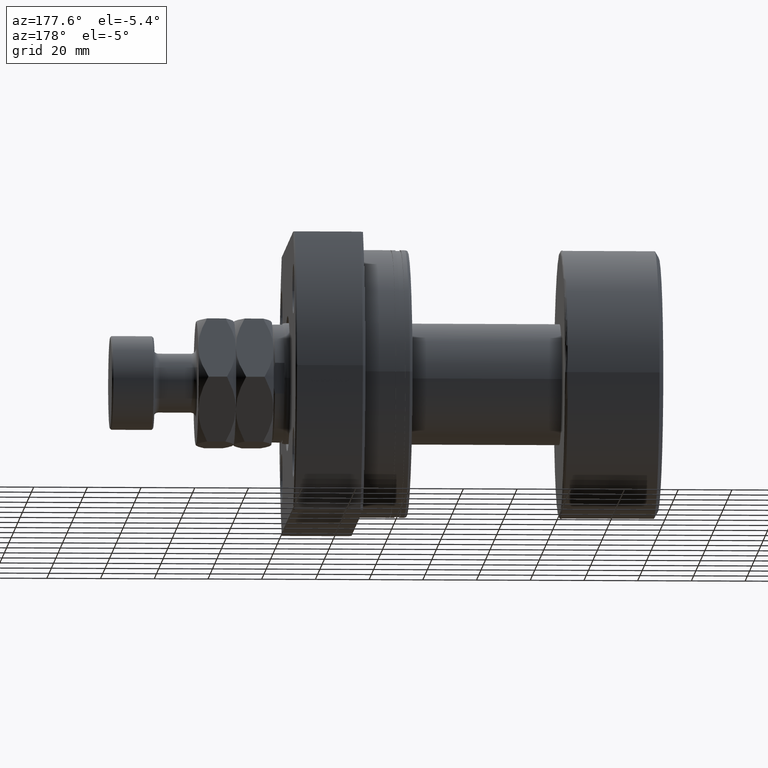
[diagram: clean part render]
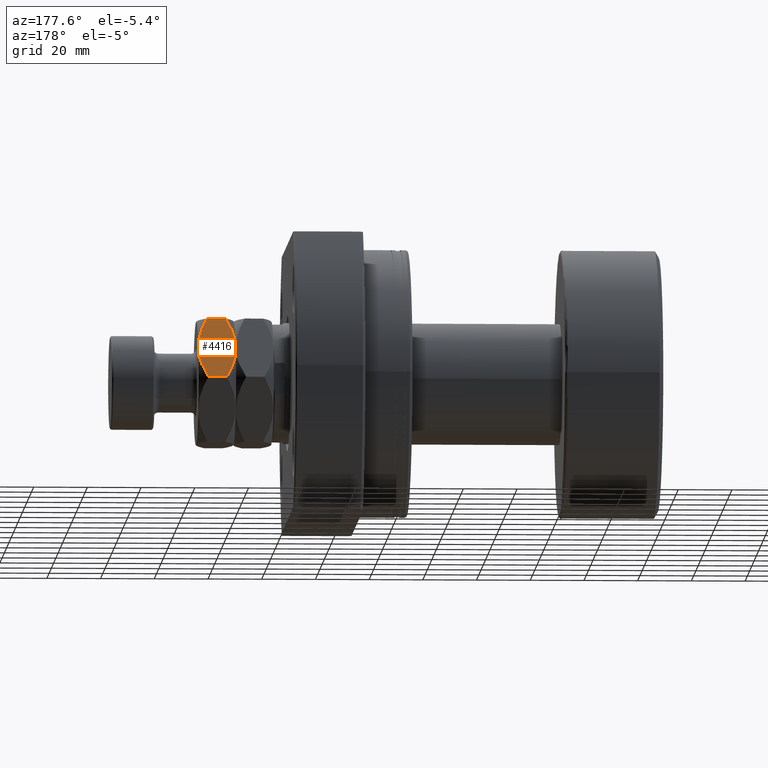
[diagram: same view with one face highlighted and labeled with its STEP entity id]
A machine part, auxiliary view. The second image highlights one B-rep face of the part: STEP entity #4416.
In plain terms, the highlighted planar face has unit normal (0, -0.866, -0.5).
Its self-contained STEP definition (entity closure, byte-faithful):
#64 = CARTESIAN_POINT ( 'NONE',  ( 1.454313212164363718E-16, 26.55811238272278274, 17.55811238272277564 ) ) ;
#91 = DIRECTION ( 'NONE',  ( 0.5000000000000000000, -0.8660254037844387076, 0.000000000000000000 ) ) ;
#113 = CARTESIAN_POINT ( 'NONE',  ( -13.50031108690881254, 18.76370414255228880, 27.99999999999999645 ) ) ;
#121 = CARTESIAN_POINT ( 'NONE',  ( -23.00000000000000000, 13.27905619136138959, 24.44188761727722792 ) ) ;
#206 = CARTESIAN_POINT ( 'NONE',  ( -19.32386580747566285, 15.40147325699250835, 26.30893151126141305 ) ) ;
#349 = B_SPLINE_CURVE_WITH_KNOTS ( 'NONE', 3,
 ( #4652, #2738, #432, #1983, #2816, #2455, #4427, #3933, #4354, #2891 ),
 .UNSPECIFIED., .F., .F.,
 ( 4, 2, 2, 2, 4 ),
 ( 2.544306848965901738E-07, 0.006882727124393998516, 0.01032396347124855430, 0.01204458164467582700, 0.01376519981810310142 ),
 .UNSPECIFIED. ) ;
#364 = FACE_OUTER_BOUND ( 'NONE', #2243, .T. ) ;
#411 = CARTESIAN_POINT ( 'NONE',  ( -23.00000000000000000, 13.27905619136138959, 17.55811238272277564 ) ) ;
#432 = CARTESIAN_POINT ( 'NONE',  ( -3.647547518302291181, 24.45219984114900669, 26.36778857186889979 ) ) ;
#438 = B_SPLINE_CURVE_WITH_KNOTS ( 'NONE', 3,
 ( #3937, #113, #3555, #1210, #206, #1659, #3171, #4696 ),
 .UNSPECIFIED., .F., .F.,
 ( 4, 2, 2, 4 ),
 ( 0.01376519981810310142, 0.02059946815584627611, 0.02401660232471787212, 0.02743373649358946814 ),
 .UNSPECIFIED. ) ;
#702 = CARTESIAN_POINT ( 'NONE',  ( -15.51476468404854536, 17.60065881597367010, 14.43516383610315934 ) ) ;
#830 = CARTESIAN_POINT ( 'NONE',  ( -23.00000000000000000, 13.27905619136138959, 17.55811238272277564 ) ) ;
#976 = ORIENTED_EDGE ( 'NONE', *, *, #1151, .F. ) ;
#1055 = VERTEX_POINT ( 'NONE', #64 ) ;
#1061 = EDGE_CURVE ( 'NONE', #2192, #1055, #3815, .T. ) ;
#1064 = ORIENTED_EDGE ( 'NONE', *, *, #4360, .F. ) ;
#1099 = CARTESIAN_POINT ( 'NONE',  ( -5.585970924421222377E-16, 26.55811238272278274, 24.44188761727722792 ) ) ;
#1123 = EDGE_CURVE ( 'NONE', #3393, #2839, #438, .T. ) ;
#1151 = EDGE_CURVE ( 'NONE', #3497, #2192, #2671, .T. ) ;
#1194 = VECTOR ( 'NONE', #3063, 1000.000000000000000 ) ;
#1210 = CARTESIAN_POINT ( 'NONE',  ( -18.37513248879267280, 15.94922469392330200, 26.69215624893396566 ) ) ;
#1458 = CARTESIAN_POINT ( 'NONE',  ( -11.49999999999999822, 19.91858428704208706, 28.00000000000000000 ) ) ;
#1478 = CARTESIAN_POINT ( 'NONE',  ( -14.02580821503727293, 18.46030823416894862, 14.17725660431697143 ) ) ;
#1612 = CARTESIAN_POINT ( 'NONE',  ( -16.48674779066320539, 17.03948410772191835, 14.68627580135475519 ) ) ;
#1633 = CARTESIAN_POINT ( 'NONE',  ( -4.624867511207327198, 23.88794388016087211, 15.30784375106604323 ) ) ;
#1659 = CARTESIAN_POINT ( 'NONE',  ( -21.18561130058603581, 14.32659399538266065, 25.44392212070776083 ) ) ;
#1690 = CARTESIAN_POINT ( 'NONE',  ( -11.49999999999998757, 19.91858428704209416, 14.00000000000000000 ) ) ;
#1917 = DIRECTION ( 'NONE',  ( 0.8660254037844385966, 0.4999999999999999445, 0.000000000000000000 ) ) ;
#1983 = CARTESIAN_POINT ( 'NONE',  ( -6.513252209336787502, 22.79768446636224866, 27.31372419864523948 ) ) ;
#1987 = CARTESIAN_POINT ( 'NONE',  ( -21.19663298550256414, 14.32023062262916824, 16.51693795145500232 ) ) ;
#2032 = CARTESIAN_POINT ( 'NONE',  ( -3.676134192524332711, 24.43569531709167464, 15.69106848873859761 ) ) ;
#2059 = CARTESIAN_POINT ( 'NONE',  ( -0.9006392137919303487, 26.03812809019727226, 17.03812809019724028 ) ) ;
#2073 = VECTOR ( 'NONE', #3914, 1000.000000000000000 ) ;
#2192 = VERTEX_POINT ( 'NONE', #1690 ) ;
#2215 = CARTESIAN_POINT ( 'NONE',  ( -12.00360498572109869, 19.62782781297077861, 14.00000000000000355 ) ) ;
#2243 = EDGE_LOOP ( 'NONE', ( #976, #1064, #2437, #2570, #2783, #2685 ) ) ;
#2362 = CARTESIAN_POINT ( 'NONE',  ( -23.00000000000000000, 13.27905619136138959, 28.00000000000000000 ) ) ;
#2386 = CARTESIAN_POINT ( 'NONE',  ( 1.454313212164363718E-16, 26.55811238272278274, 17.55811238272277564 ) ) ;
#2412 = CARTESIAN_POINT ( 'NONE',  ( -11.49999999999998757, 19.91858428704209416, 14.00000000000000000 ) ) ;
#2437 = ORIENTED_EDGE ( 'NONE', *, *, #1123, .F. ) ;
#2455 = CARTESIAN_POINT ( 'NONE',  ( -8.974191784962719964, 21.37686033991523971, 27.82274339568303034 ) ) ;
#2488 = VERTEX_POINT ( 'NONE', #1099 ) ;
#2553 = AXIS2_PLACEMENT_3D ( 'NONE', #3559, #91, #1917 ) ;
#2570 = ORIENTED_EDGE ( 'NONE', *, *, #4858, .F. ) ;
#2671 = B_SPLINE_CURVE_WITH_KNOTS ( 'NONE', 3,
 ( #411, #1987, #3533, #1612, #702, #1478, #4537, #3009, #2215, #3792 ),
 .UNSPECIFIED., .F., .F.,
 ( 4, 2, 2, 2, 4 ),
 ( 2.544306848942777738E-07, 0.006882727124394009792, 0.01032396347124856298, 0.01204458164467584087, 0.01376519981810311703 ),
 .UNSPECIFIED. ) ;
#2685 = ORIENTED_EDGE ( 'NONE', *, *, #1061, .F. ) ;
#2738 = CARTESIAN_POINT ( 'NONE',  ( -1.803367014497426535, 25.51693795145499877, 25.48306204854500479 ) ) ;
#2744 = LINE ( 'NONE', #2362, #2073 ) ;
#2765 = CARTESIAN_POINT ( 'NONE',  ( -9.499688913091175024, 21.07346443153189242, 14.00000000000000711 ) ) ;
#2783 = ORIENTED_EDGE ( 'NONE', *, *, #3333, .T. ) ;
#2816 = CARTESIAN_POINT ( 'NONE',  ( -7.485235315951453750, 22.23650975811052177, 27.56483616389684599 ) ) ;
#2839 = VERTEX_POINT ( 'NONE', #121 ) ;
#2891 = CARTESIAN_POINT ( 'NONE',  ( -11.49999999999999822, 19.91858428704208706, 28.00000000000000000 ) ) ;
#3009 = CARTESIAN_POINT ( 'NONE',  ( -12.51003418050900073, 19.33544078103449593, 14.02214754275534681 ) ) ;
#3063 = DIRECTION ( 'NONE',  ( -0.000000000000000000, -0.000000000000000000, -1.000000000000000000 ) ) ;
#3171 = CARTESIAN_POINT ( 'NONE',  ( -22.09936078620808075, 13.79904048388689475, 24.96187190980275972 ) ) ;
#3199 = CARTESIAN_POINT ( 'NONE',  ( -1.814388699413963302, 25.51057457870152234, 16.55607787929224983 ) ) ;
#3333 = EDGE_CURVE ( 'NONE', #2488, #1055, #3362, .T. ) ;
#3362 = LINE ( 'NONE', #3415, #1194 ) ;
#3393 = VERTEX_POINT ( 'NONE', #1458 ) ;
#3415 = CARTESIAN_POINT ( 'NONE',  ( 3.939050586258542253E-17, 26.55811238272278274, 28.00000000000000000 ) ) ;
#3497 = VERTEX_POINT ( 'NONE', #830 ) ;
#3533 = CARTESIAN_POINT ( 'NONE',  ( -19.35245248169769994, 15.38496873293517098, 15.63221142813110021 ) ) ;
#3555 = CARTESIAN_POINT ( 'NONE',  ( -15.46660869709778297, 17.62846168800276914, 27.64682745090641447 ) ) ;
#3559 = CARTESIAN_POINT ( 'NONE',  ( 3.939050586258542253E-17, 26.55811238272278274, 28.00000000000000000 ) ) ;
#3792 = CARTESIAN_POINT ( 'NONE',  ( -11.49999999999998757, 19.91858428704209416, 14.00000000000000000 ) ) ;
#3815 = B_SPLINE_CURVE_WITH_KNOTS ( 'NONE', 3,
 ( #2412, #2765, #4356, #1633, #2032, #3199, #2059, #2386 ),
 .UNSPECIFIED., .F., .F.,
 ( 4, 2, 2, 4 ),
 ( 0.01376519981810311703, 0.02059946815584629345, 0.02401660232471788253, 0.02743373649358946814 ),
 .UNSPECIFIED. ) ;
#3914 = DIRECTION ( 'NONE',  ( -0.000000000000000000, -0.000000000000000000, -1.000000000000000000 ) ) ;
#3933 = CARTESIAN_POINT ( 'NONE',  ( -10.48996581949099216, 20.50172779304969595, 27.97785245724465852 ) ) ;
#3937 = CARTESIAN_POINT ( 'NONE',  ( -11.49999999999999822, 19.91858428704208706, 28.00000000000000000 ) ) ;
#4354 = CARTESIAN_POINT ( 'NONE',  ( -10.99639501427889243, 20.20934076111340971, 28.00000000000000711 ) ) ;
#4356 = CARTESIAN_POINT ( 'NONE',  ( -7.533391302902206377, 22.20870688608140497, 14.35317254909358375 ) ) ;
#4360 = EDGE_CURVE ( 'NONE', #2839, #3497, #2744, .T. ) ;
#4416 = ADVANCED_FACE ( 'NONE', ( #364 ), #4679, .F. ) ;
#4427 = CARTESIAN_POINT ( 'NONE',  ( -9.475678885897350412, 21.08732662719550177, 27.88890122221210177 ) ) ;
#4537 = CARTESIAN_POINT ( 'NONE',  ( -13.52432111410263715, 18.74984194688868300, 14.11109877778790356 ) ) ;
#4652 = CARTESIAN_POINT ( 'NONE',  ( -5.585970924421222377E-16, 26.55811238272278274, 24.44188761727722792 ) ) ;
#4679 = PLANE ( 'NONE',  #2553 ) ;
#4696 = CARTESIAN_POINT ( 'NONE',  ( -23.00000000000000000, 13.27905619136138959, 24.44188761727722792 ) ) ;
#4858 = EDGE_CURVE ( 'NONE', #2488, #3393, #349, .T. ) ;